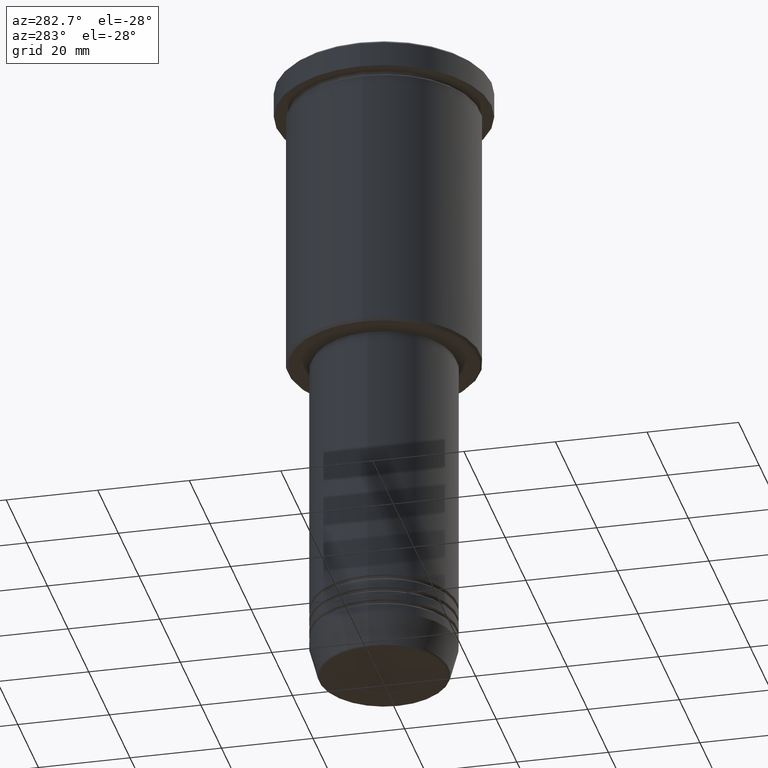
[diagram: clean part render]
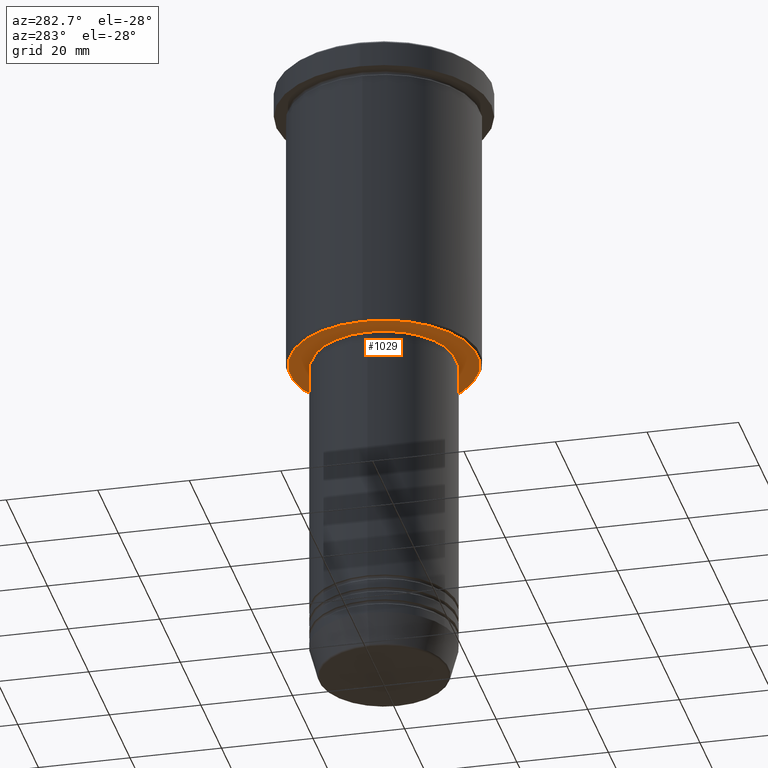
[diagram: same view with one face highlighted and labeled with its STEP entity id]
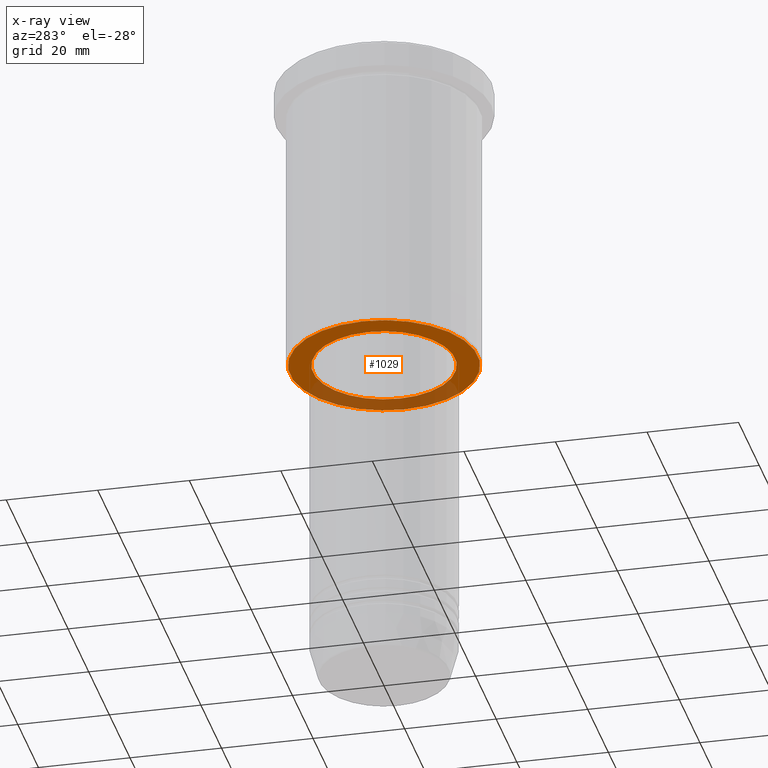
[diagram: x-ray of the same camera — body ghosted, the highlighted face saturated]
A machine part, auxiliary view. The second image highlights one B-rep face of the part: STEP entity #1029.
The next image is the same camera in x-ray: the body ghosted, the highlighted face saturated — about 32% of this face is hidden behind the body in this view.
In plain terms, the highlighted planar face has unit normal (0, 0, -1).
Its self-contained STEP definition (entity closure, byte-faithful):
#12 = ORIENTED_EDGE ( 'NONE', *, *, #1086, .T. ) ;
#16 = FACE_BOUND ( 'NONE', #577, .T. ) ;
#113 = CARTESIAN_POINT ( 'NONE',  ( 0.000000000000000000, 0.000000000000000000, -66.00000000000000000 ) ) ;
#142 = ORIENTED_EDGE ( 'NONE', *, *, #1109, .T. ) ;
#150 = CARTESIAN_POINT ( 'NONE',  ( -15.50000000000000000, 1.898202538678397557E-15, -66.00000000000000000 ) ) ;
#162 = DIRECTION ( 'NONE',  ( 0.000000000000000000, 0.000000000000000000, -1.000000000000000000 ) ) ;
#172 = AXIS2_PLACEMENT_3D ( 'NONE', #205, #852, #585 ) ;
#192 = CARTESIAN_POINT ( 'NONE',  ( -20.50000000000000355, 2.541142108230758269E-15, -66.00000000000000000 ) ) ;
#205 = CARTESIAN_POINT ( 'NONE',  ( 0.000000000000000000, 0.000000000000000000, -66.00000000000000000 ) ) ;
#212 = CARTESIAN_POINT ( 'NONE',  ( 20.50000000000000355, 0.000000000000000000, -66.00000000000000000 ) ) ;
#266 = ORIENTED_EDGE ( 'NONE', *, *, #302, .T. ) ;
#281 = CARTESIAN_POINT ( 'NONE',  ( 15.50000000000000000, 0.000000000000000000, -66.00000000000000000 ) ) ;
#302 = EDGE_CURVE ( 'NONE', #1103, #1026, #725, .T. ) ;
#339 = AXIS2_PLACEMENT_3D ( 'NONE', #113, #162, #404 ) ;
#360 = AXIS2_PLACEMENT_3D ( 'NONE', #484, #388, #407 ) ;
#369 = PLANE ( 'NONE',  #742 ) ;
#388 = DIRECTION ( 'NONE',  ( 0.000000000000000000, 0.000000000000000000, -1.000000000000000000 ) ) ;
#393 = DIRECTION ( 'NONE',  ( 1.000000000000000000, 0.000000000000000000, 0.000000000000000000 ) ) ;
#404 = DIRECTION ( 'NONE',  ( -1.000000000000000000, 0.000000000000000000, 0.000000000000000000 ) ) ;
#407 = DIRECTION ( 'NONE',  ( -1.000000000000000000, 0.000000000000000000, 0.000000000000000000 ) ) ;
#484 = CARTESIAN_POINT ( 'NONE',  ( 0.000000000000000000, 0.000000000000000000, -66.00000000000000000 ) ) ;
#518 = CIRCLE ( 'NONE', #360, 20.50000000000000355 ) ;
#561 = FACE_OUTER_BOUND ( 'NONE', #691, .T. ) ;
#577 = EDGE_LOOP ( 'NONE', ( #142, #12 ) ) ;
#581 = DIRECTION ( 'NONE',  ( 0.000000000000000000, 0.000000000000000000, -1.000000000000000000 ) ) ;
#585 = DIRECTION ( 'NONE',  ( 1.000000000000000000, 0.000000000000000000, 0.000000000000000000 ) ) ;
#596 = CIRCLE ( 'NONE', #172, 15.50000000000000000 ) ;
#597 = EDGE_CURVE ( 'NONE', #1026, #1103, #518, .T. ) ;
#655 = CARTESIAN_POINT ( 'NONE',  ( 0.000000000000000000, 21.00000000000000000, -66.00000000000000000 ) ) ;
#691 = EDGE_LOOP ( 'NONE', ( #266, #923 ) ) ;
#725 = CIRCLE ( 'NONE', #339, 20.50000000000000355 ) ;
#742 = AXIS2_PLACEMENT_3D ( 'NONE', #655, #581, #863 ) ;
#846 = CIRCLE ( 'NONE', #1113, 15.50000000000000000 ) ;
#852 = DIRECTION ( 'NONE',  ( -0.000000000000000000, -0.000000000000000000, 1.000000000000000000 ) ) ;
#855 = VERTEX_POINT ( 'NONE', #150 ) ;
#858 = DIRECTION ( 'NONE',  ( -0.000000000000000000, -0.000000000000000000, 1.000000000000000000 ) ) ;
#863 = DIRECTION ( 'NONE',  ( -1.000000000000000000, 0.000000000000000000, -0.000000000000000000 ) ) ;
#923 = ORIENTED_EDGE ( 'NONE', *, *, #597, .T. ) ;
#942 = VERTEX_POINT ( 'NONE', #281 ) ;
#954 = CARTESIAN_POINT ( 'NONE',  ( 0.000000000000000000, 0.000000000000000000, -66.00000000000000000 ) ) ;
#1026 = VERTEX_POINT ( 'NONE', #192 ) ;
#1029 = ADVANCED_FACE ( 'NONE', ( #561, #16 ), #369, .T. ) ;
#1086 = EDGE_CURVE ( 'NONE', #855, #942, #596, .T. ) ;
#1103 = VERTEX_POINT ( 'NONE', #212 ) ;
#1109 = EDGE_CURVE ( 'NONE', #942, #855, #846, .T. ) ;
#1113 = AXIS2_PLACEMENT_3D ( 'NONE', #954, #858, #393 ) ;